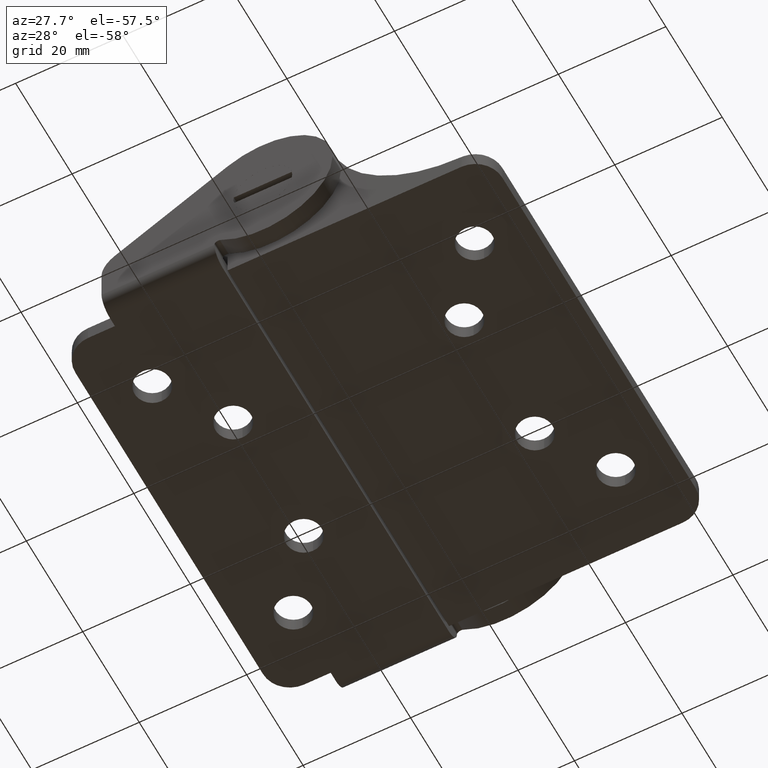
[diagram: clean part render]
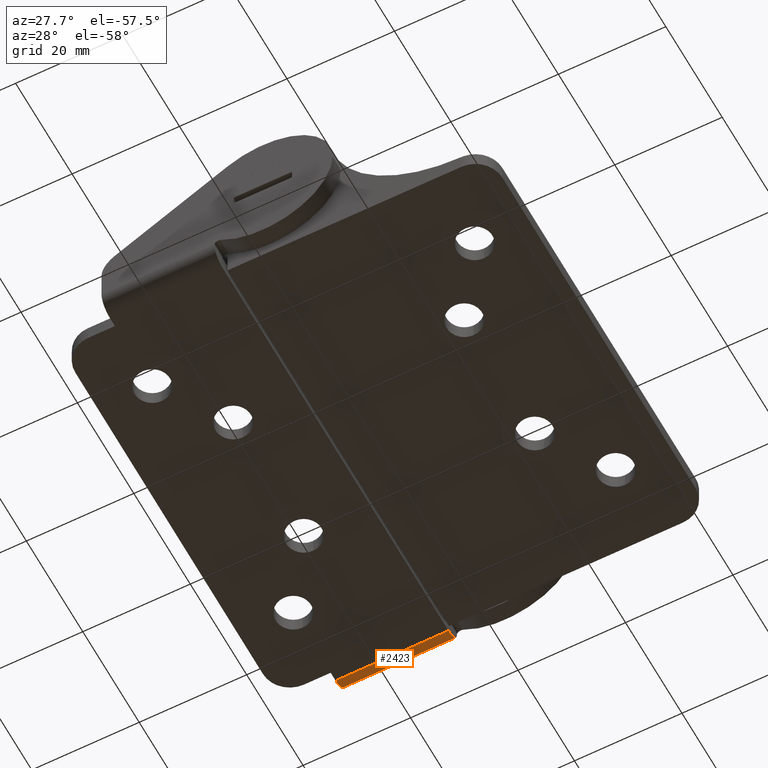
[diagram: same view with one face highlighted and labeled with its STEP entity id]
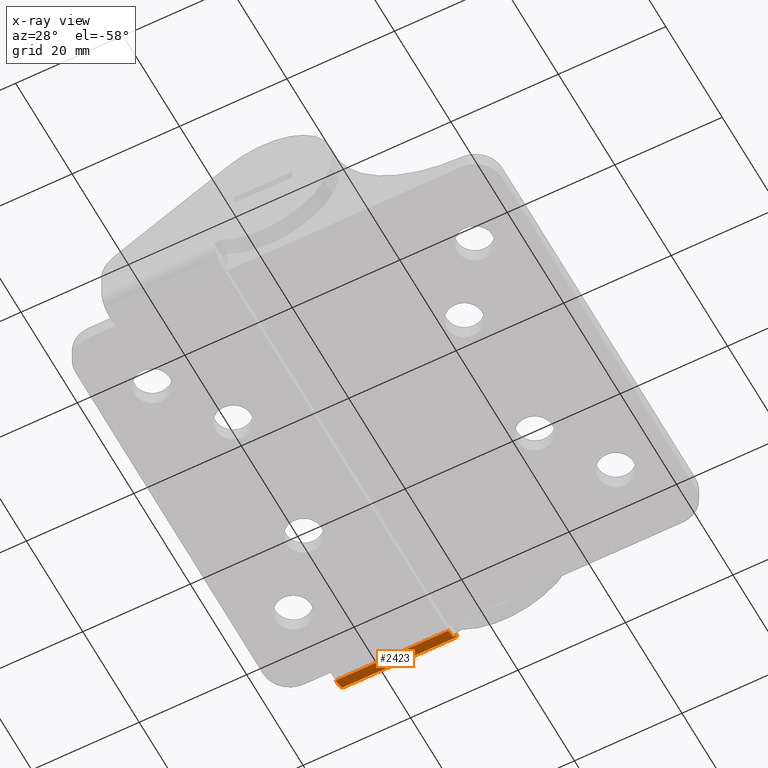
[diagram: x-ray of the same camera — body ghosted, the highlighted face saturated]
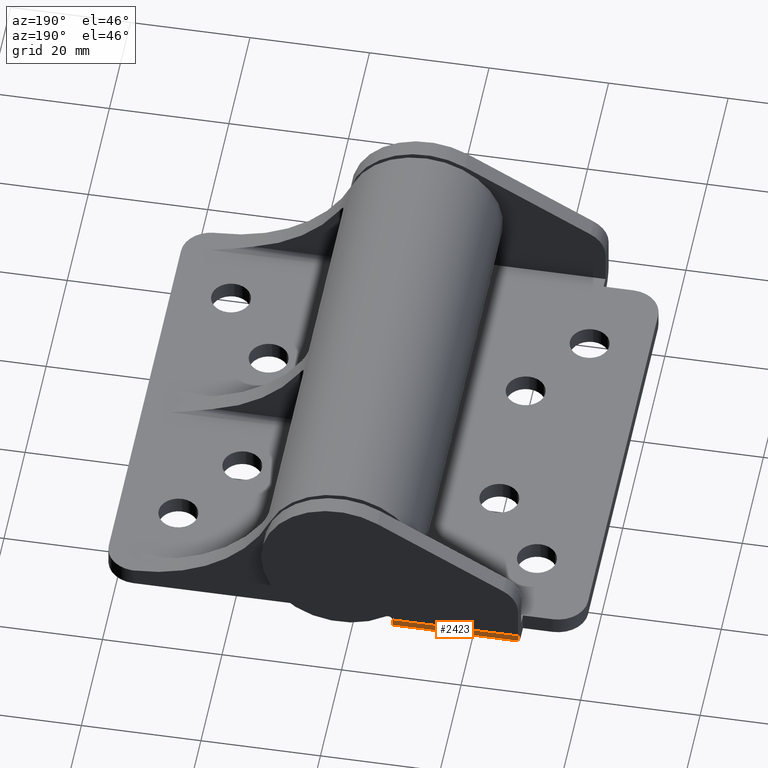
[diagram: same view with one face highlighted and labeled with its STEP entity id]
A machine part, auxiliary view. The second image highlights one B-rep face of the part: STEP entity #2423.
The next image is the same camera in x-ray: the body ghosted, the highlighted face saturated — about 0% of this face is hidden behind the body in this view.
A second angle (auxiliary view) of the same face is appended — the face is thin or edge-on in the first view.
In plain terms, the highlighted cylindrical surface (edge-blend (fillet) strip) has radius 3 mm, axis along (-1, 0, 0).
Its self-contained STEP definition (entity closure, byte-faithful):
#112 = EDGE_LOOP ( 'NONE', ( #298, #379, #383, #488 ) ) ;
#175 = CARTESIAN_POINT ( 'NONE',  ( -9.000000000000108400, 14.00000000000000000, 83.00000000000000000 ) ) ;
#298 = ORIENTED_EDGE ( 'NONE', *, *, #752, .F. ) ;
#379 = ORIENTED_EDGE ( 'NONE', *, *, #1186, .F. ) ;
#383 = ORIENTED_EDGE ( 'NONE', *, *, #1636, .F. ) ;
#488 = ORIENTED_EDGE ( 'NONE', *, *, #695, .F. ) ;
#548 = DIRECTION ( 'NONE',  ( 0.0000000000000000000, 0.0000000000000000000, 1.000000000000000000 ) ) ;
#549 = FACE_OUTER_BOUND ( 'NONE', #112, .T. ) ;
#695 = EDGE_CURVE ( 'NONE', #814, #2819, #2584, .T. ) ;
#752 = EDGE_CURVE ( 'NONE', #1100, #814, #785, .T. ) ;
#761 = DIRECTION ( 'NONE',  ( 0.0000000000000000000, 0.0000000000000000000, 1.000000000000000000 ) ) ;
#773 = DIRECTION ( 'NONE',  ( -1.000000000000000000, 0.0000000000000000000, 0.0000000000000000000 ) ) ;
#785 = CIRCLE ( 'NONE', #2702, 3.000000000000002700 ) ;
#814 = VERTEX_POINT ( 'NONE', #2621 ) ;
#977 = CARTESIAN_POINT ( 'NONE',  ( -30.00000000000000000, 11.00000000000000000, 83.00000000000000000 ) ) ;
#1049 = CARTESIAN_POINT ( 'NONE',  ( -9.000000000000108400, 11.00000000000000000, 83.00000000000000000 ) ) ;
#1098 = AXIS2_PLACEMENT_3D ( 'NONE', #1415, #3850, #548 ) ;
#1100 = VERTEX_POINT ( 'NONE', #1380 ) ;
#1133 = VECTOR ( 'NONE', #1423, 1000.000000000000000 ) ;
#1186 = EDGE_CURVE ( 'NONE', #1303, #1100, #2182, .T. ) ;
#1303 = VERTEX_POINT ( 'NONE', #3174 ) ;
#1315 = CIRCLE ( 'NONE', #1488, 3.000000000000002700 ) ;
#1348 = VECTOR ( 'NONE', #1640, 1000.000000000000000 ) ;
#1380 = CARTESIAN_POINT ( 'NONE',  ( -9.000000000000108400, 14.00000000000000000, 83.00000000000000000 ) ) ;
#1415 = CARTESIAN_POINT ( 'NONE',  ( 0.0000000000000000000, 11.00000000000000000, 83.00000000000000000 ) ) ;
#1423 = DIRECTION ( 'NONE',  ( -1.000000000000000000, 0.0000000000000000000, 0.0000000000000000000 ) ) ;
#1488 = AXIS2_PLACEMENT_3D ( 'NONE', #977, #773, #761 ) ;
#1514 = CARTESIAN_POINT ( 'NONE',  ( -30.00000000000000000, 11.00000000000000000, 86.00000000000000000 ) ) ;
#1636 = EDGE_CURVE ( 'NONE', #2819, #1303, #1315, .T. ) ;
#1640 = DIRECTION ( 'NONE',  ( 1.000000000000000000, 0.0000000000000000000, 0.0000000000000000000 ) ) ;
#1810 = DIRECTION ( 'NONE',  ( 1.000000000000000000, 0.0000000000000000000, 0.0000000000000000000 ) ) ;
#2182 = LINE ( 'NONE', #175, #1348 ) ;
#2423 = ADVANCED_FACE ( 'NONE', ( #549 ), #3658, .T. ) ;
#2584 = LINE ( 'NONE', #1514, #1133 ) ;
#2616 = CARTESIAN_POINT ( 'NONE',  ( -30.00000000000000000, 11.00000000000000000, 86.00000000000000000 ) ) ;
#2621 = CARTESIAN_POINT ( 'NONE',  ( -9.000000000000000000, 11.00000000000000000, 86.00000000000000000 ) ) ;
#2702 = AXIS2_PLACEMENT_3D ( 'NONE', #1049, #1810, #3367 ) ;
#2819 = VERTEX_POINT ( 'NONE', #2616 ) ;
#3174 = CARTESIAN_POINT ( 'NONE',  ( -30.00000000000000000, 14.00000000000000000, 83.00000000000000000 ) ) ;
#3367 = DIRECTION ( 'NONE',  ( 0.0000000000000000000, 0.0000000000000000000, -1.000000000000000000 ) ) ;
#3658 = CYLINDRICAL_SURFACE ( 'NONE', #1098, 3.000000000000002700 ) ;
#3850 = DIRECTION ( 'NONE',  ( -1.000000000000000000, 0.0000000000000000000, 0.0000000000000000000 ) ) ;